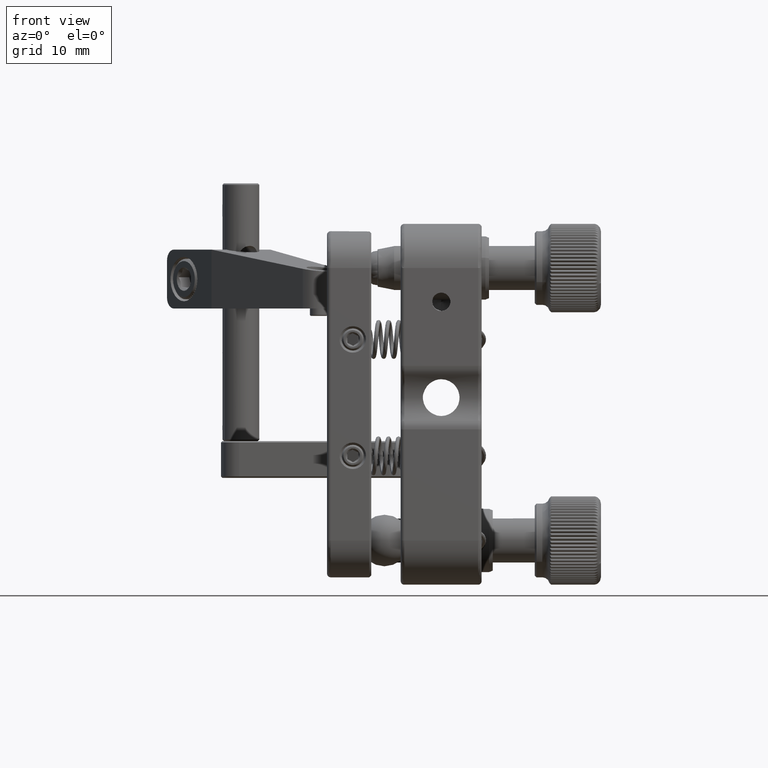
[diagram: clean part render]
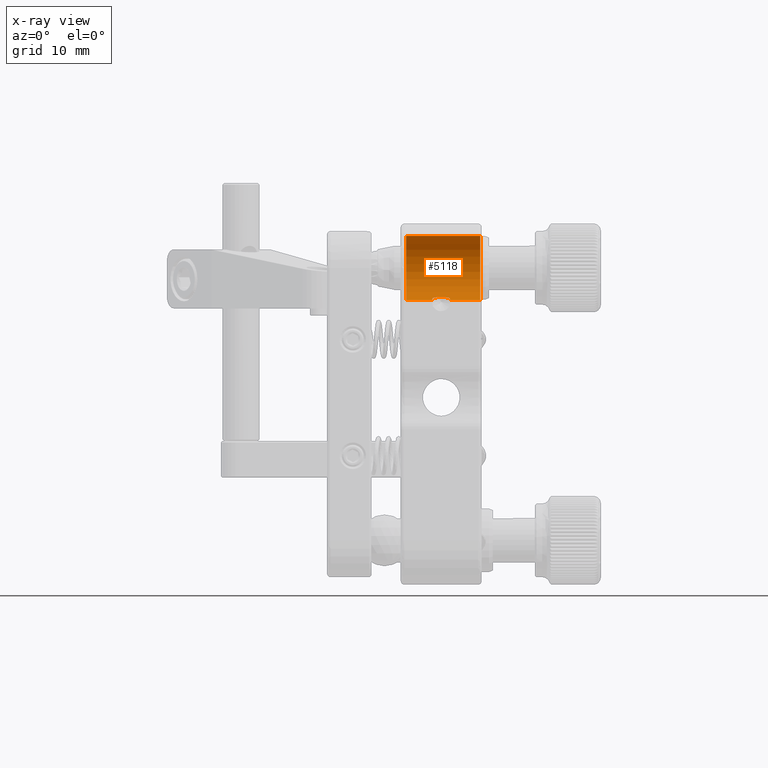
[diagram: x-ray — body ghosted, one internal face saturated and labeled with its STEP entity id]
A machine part, front view, then the same camera in x-ray: the body is ghosted and one INTERNAL B-rep face — a face not visible from any outside direction — is saturated and labeled: STEP entity #5118.
In plain terms, the highlighted cylindrical surface (edge-blend (fillet) strip) has radius 4.35 mm, axis along (1, 0, -0).
Its self-contained STEP definition (entity closure, byte-faithful):
#428 = LINE ( 'NONE', #18315, #34196 ) ;
#496 = EDGE_LOOP ( 'NONE', ( #28557, #30862, #57978, #42658, #3118, #5162, #45522, #28300, #53847 ) ) ;
#614 = CARTESIAN_POINT ( 'NONE',  ( 0.3791978567672906197, -16.69398571160523659, 14.54278472212392792 ) ) ;
#671 = FACE_OUTER_BOUND ( 'NONE', #496, .T. ) ;
#687 = VERTEX_POINT ( 'NONE', #24869 ) ;
#916 = CARTESIAN_POINT ( 'NONE',  ( 0.7538629908637947130, -16.82247720053731044, 14.48646737803480455 ) ) ;
#1350 = EDGE_CURVE ( 'NONE', #51601, #30839, #3129, .T. ) ;
#1854 = CYLINDRICAL_SURFACE ( 'NONE', #14225, 4.350000000000003197 ) ;
#2780 = DIRECTION ( 'NONE',  ( -1.000000000000000000, 6.807720020326241225E-16, -6.807720018929957422E-16 ) ) ;
#3090 = VERTEX_POINT ( 'NONE', #26234 ) ;
#3118 = ORIENTED_EDGE ( 'NONE', *, *, #40435, .T. ) ;
#3129 = B_SPLINE_CURVE_WITH_KNOTS ( 'NONE', 3,
 ( #39256, #15750, #21374, #57437, #16041, #7980 ),
 .UNSPECIFIED., .F., .F.,
 ( 4, 2, 4 ),
 ( 3.476216610979977084E-18, 0.0007635292905747010066, 0.001527058581149398544 ),
 .UNSPECIFIED. ) ;
#3516 = CARTESIAN_POINT ( 'NONE',  ( -4.750000000000000000, -18.50000000089220009, 14.15000000000000213 ) ) ;
#3880 = AXIS2_PLACEMENT_3D ( 'NONE', #48070, #57024, #6391 ) ;
#4807 = CARTESIAN_POINT ( 'NONE',  ( -0.3919002033214538105, -16.69926534790088368, 14.54032657706684972 ) ) ;
#5118 = ADVANCED_FACE ( 'NONE', ( #671 ), #1854, .F. ) ;
#5162 = ORIENTED_EDGE ( 'NONE', *, *, #9433, .T. ) ;
#6391 = DIRECTION ( 'NONE',  ( -5.981805089575192253E-16, 0.000000000000000000, -1.000000000000000000 ) ) ;
#7450 = CARTESIAN_POINT ( 'NONE',  ( 5.299999999999997158, -18.50000000178440018, 22.84999999999999432 ) ) ;
#7826 = CARTESIAN_POINT ( 'NONE',  ( -0.1982486910836069316, -16.66148595692289192, 14.55784086705030234 ) ) ;
#7955 = VERTEX_POINT ( 'NONE', #21246 ) ;
#7980 = CARTESIAN_POINT ( 'NONE',  ( -1.138162969970768268, -17.00000000036367709, 14.41680272292566123 ) ) ;
#8660 = B_SPLINE_CURVE_WITH_KNOTS ( 'NONE', 3,
 ( #38734, #58068, #49109, #57486, #17242, #56910 ),
 .UNSPECIFIED., .F., .F.,
 ( 4, 2, 4 ),
 ( 1.664305655138058166E-14, 0.0007634933856178369952, 0.001526986771219031053 ),
 .UNSPECIFIED. ) ;
#8699 = CARTESIAN_POINT ( 'NONE',  ( -0.4889628232683422837, -16.72691654608306422, 14.52786979029822056 ) ) ;
#9433 = EDGE_CURVE ( 'NONE', #49491, #10435, #29587, .T. ) ;
#10435 = VERTEX_POINT ( 'NONE', #3516 ) ;
#11467 = CARTESIAN_POINT ( 'NONE',  ( 5.299999999999997158, -18.50000000000000000, 18.50000000000001066 ) ) ;
#12151 = DIRECTION ( 'NONE',  ( -1.000000000000000000, -0.000000000000000000, -0.000000000000000000 ) ) ;
#12565 = CARTESIAN_POINT ( 'NONE',  ( 0.2750000000000000777, -18.50000000000000000, 14.14999999999999858 ) ) ;
#13207 = VERTEX_POINT ( 'NONE', #39524 ) ;
#13736 = AXIS2_PLACEMENT_3D ( 'NONE', #11467, #2780, #25164 ) ;
#13756 = VECTOR ( 'NONE', #41355, 1000.000000000000000 ) ;
#14225 = AXIS2_PLACEMENT_3D ( 'NONE', #37911, #32549, #47436 ) ;
#14707 = CARTESIAN_POINT ( 'NONE',  ( -4.749999999999994671, -18.50000000089220364, 22.84999999999999432 ) ) ;
#15750 = CARTESIAN_POINT ( 'NONE',  ( -1.224744871394733536, -18.24254307889891535, 14.14999999998459934 ) ) ;
#16041 = CARTESIAN_POINT ( 'NONE',  ( -1.178038255948022250, -17.23905210831163259, 14.32898473709757603 ) ) ;
#17052 = CARTESIAN_POINT ( 'NONE',  ( -0.2749476356948590827, -16.67394990854504400, 14.55185526267911200 ) ) ;
#17242 = CARTESIAN_POINT ( 'NONE',  ( 1.224744871395021972, -18.24259431151645217, 14.14999999998318181 ) ) ;
#17636 = CARTESIAN_POINT ( 'NONE',  ( -0.5853572528005983600, -16.75854805866082842, 14.51379308121438960 ) ) ;
#17923 = CARTESIAN_POINT ( 'NONE',  ( -0.5644809829970934834, -16.75136715580134350, 14.51695168766746669 ) ) ;
#18220 = CARTESIAN_POINT ( 'NONE',  ( -0.2894478502370403383, -16.67671351262932333, 14.55055383793496837 ) ) ;
#18315 = CARTESIAN_POINT ( 'NONE',  ( 0.2750000000000000777, -18.50000000000000000, 14.14999999999999858 ) ) ;
#18459 = CARTESIAN_POINT ( 'NONE',  ( -1.224744871391588497, -18.50000000026039970, 14.15000000000000213 ) ) ;
#18792 = CARTESIAN_POINT ( 'NONE',  ( 0.09641748843816287662, -16.64788891878822952, 14.56398875218681788 ) ) ;
#19099 = CARTESIAN_POINT ( 'NONE',  ( 0.9355436526825869903, -16.90120657512040125, 14.45447253561993861 ) ) ;
#20431 = CIRCLE ( 'NONE', #13736, 4.350000000000003197 ) ;
#21236 = CARTESIAN_POINT ( 'NONE',  ( -5.789780990655816658E-11, -16.64788891885134703, 14.56398875227067613 ) ) ;
#21246 = CARTESIAN_POINT ( 'NONE',  ( 1.224744871391588719, -18.50000000013019630, 14.14999999999999680 ) ) ;
#21374 = CARTESIAN_POINT ( 'NONE',  ( -1.220763614345893089, -17.98858237705779928, 14.17268542925944530 ) ) ;
#22987 = CARTESIAN_POINT ( 'NONE',  ( -0.5264601768346534039, -16.73877062983403974, 14.52255458529914733 ) ) ;
#23279 = CARTESIAN_POINT ( 'NONE',  ( 0.7981031238678222284, -16.84100200278183124, 14.47884387323839661 ) ) ;
#23288 = CARTESIAN_POINT ( 'NONE',  ( -0.3453449840880622457, -16.68798526498006041, 14.54535317948380957 ) ) ;
#23289 = EDGE_CURVE ( 'NONE', #687, #7955, #8660, .T. ) ;
#23574 = CARTESIAN_POINT ( 'NONE',  ( 0.4699521720620915555, -16.71918738639461210, 14.53108933380769940 ) ) ;
#24352 = VERTEX_POINT ( 'NONE', #7450 ) ;
#24449 = VECTOR ( 'NONE', #12151, 1000.000000000000000 ) ;
#24869 = CARTESIAN_POINT ( 'NONE',  ( 1.138162970477232472, -17.00000000051300120, 14.41680272285820230 ) ) ;
#25164 = DIRECTION ( 'NONE',  ( 5.981805089575192253E-16, 0.000000000000000000, -1.000000000000000000 ) ) ;
#25781 = EDGE_CURVE ( 'NONE', #687, #3090, #37098, .T. ) ;
#25992 = CARTESIAN_POINT ( 'NONE',  ( -0.2365246563878545538, -16.66731325897753635, 14.55503103953235922 ) ) ;
#26234 = CARTESIAN_POINT ( 'NONE',  ( -5.789780990655816658E-11, -16.64788891885134703, 14.56398875227067613 ) ) ;
#27452 = CARTESIAN_POINT ( 'NONE',  ( -0.5772752760923760551, -16.75574276974671761, 14.51502305404171622 ) ) ;
#28300 = ORIENTED_EDGE ( 'NONE', *, *, #1350, .T. ) ;
#28557 = ORIENTED_EDGE ( 'NONE', *, *, #25781, .F. ) ;
#28921 = CARTESIAN_POINT ( 'NONE',  ( 0.6682917924309630386, -16.78851437311825379, 14.50077020937254169 ) ) ;
#29587 = CIRCLE ( 'NONE', #3880, 4.350000000000003197 ) ;
#30839 = VERTEX_POINT ( 'NONE', #56511 ) ;
#30862 = ORIENTED_EDGE ( 'NONE', *, *, #23289, .T. ) ;
#32549 = DIRECTION ( 'NONE',  ( 1.000000000000000000, 6.807720020326241225E-16, -6.807720018929957422E-16 ) ) ;
#32897 = DIRECTION ( 'NONE',  ( 1.000000000000000000, 0.000000000000000000, 0.000000000000000000 ) ) ;
#34196 = VECTOR ( 'NONE', #32897, 1000.000000000000000 ) ;
#34918 = CARTESIAN_POINT ( 'NONE',  ( -0.09743422752385948182, -16.65047883084912428, 14.56301662184424295 ) ) ;
#35171 = LINE ( 'NONE', #12565, #13756 ) ;
#36076 = CARTESIAN_POINT ( 'NONE',  ( -0.7432057808832437384, -16.81386886942663494, 14.48964087800506917 ) ) ;
#36856 = EDGE_CURVE ( 'NONE', #7955, #13207, #35171, .T. ) ;
#37098 = B_SPLINE_CURVE_WITH_KNOTS ( 'NONE', 3,
 ( #51555, #46207, #19099, #23279, #916, #28921, #41447, #23574, #614, #55451, #18792, #50978 ),
 .UNSPECIFIED., .F., .F.,
 ( 4, 2, 2, 2, 2, 4 ),
 ( 0.000000000000000000, 0.2499999999999971134, 0.3749999999999972244, 0.4999999999999973355, 0.7499999999999986677, 1.000000000000000000 ),
 .UNSPECIFIED. ) ;
#37911 = CARTESIAN_POINT ( 'NONE',  ( -4.749999999999997335, -18.50000000000000000, 18.50000000000001066 ) ) ;
#38734 = CARTESIAN_POINT ( 'NONE',  ( 1.138162970477232472, -17.00000000051300120, 14.41680272285820230 ) ) ;
#39239 = LINE ( 'NONE', #52939, #24449 ) ;
#39256 = CARTESIAN_POINT ( 'NONE',  ( -1.224744871391588497, -18.50000000026039970, 14.15000000000000213 ) ) ;
#39415 = CARTESIAN_POINT ( 'NONE',  ( -0.04811364185262071574, -16.64788891885850219, 14.56398875229638534 ) ) ;
#39524 = CARTESIAN_POINT ( 'NONE',  ( 5.300000000000000711, -18.50000000000000000, 14.14999999999999680 ) ) ;
#40435 = EDGE_CURVE ( 'NONE', #24352, #49491, #39239, .T. ) ;
#41170 = CARTESIAN_POINT ( 'NONE',  ( -1.138162969970768268, -17.00000000036367709, 14.41680272292566123 ) ) ;
#41355 = DIRECTION ( 'NONE',  ( 1.000000000000000000, 0.000000000000000000, 0.000000000000000000 ) ) ;
#41447 = CARTESIAN_POINT ( 'NONE',  ( 0.6153564168119601829, -16.76870060315035360, 14.50934444620101971 ) ) ;
#41994 = EDGE_CURVE ( 'NONE', #3090, #30839, #47487, .T. ) ;
#42658 = ORIENTED_EDGE ( 'NONE', *, *, #55998, .F. ) ;
#44164 = CARTESIAN_POINT ( 'NONE',  ( -0.2493180514741146769, -16.66941756249833517, 14.55401644419186269 ) ) ;
#45522 = ORIENTED_EDGE ( 'NONE', *, *, #45762, .T. ) ;
#45762 = EDGE_CURVE ( 'NONE', #10435, #51601, #428, .T. ) ;
#45921 = CARTESIAN_POINT ( 'NONE',  ( -0.5453610238593223913, -16.74490979805704427, 14.51981019465952372 ) ) ;
#46207 = CARTESIAN_POINT ( 'NONE',  ( 1.033478400573360823, -16.94751651081943322, 14.43608301483878620 ) ) ;
#47436 = DIRECTION ( 'NONE',  ( -5.981805089575192253E-16, 1.000000000000000000, 0.000000000000000000 ) ) ;
#47487 = B_SPLINE_CURVE_WITH_KNOTS ( 'NONE', 3,
 ( #21236, #39415, #34918, #48624, #7826, #25992, #44164, #17052, #18220, #23288, #4807, #58457, #8699, #22987, #45921, #17923, #27452, #17636, #36076, #54287, #41170 ),
 .UNSPECIFIED., .F., .F.,
 ( 4, 2, 2, 2, 2, 2, 2, 1, 2, 2, 4 ),
 ( 0.000000000000000000, 0.1250000000000029143, 0.1875000000000042466, 0.2187500000000042744, 0.2500000000000042744, 0.3749999999999991673, 0.4374999999999953926, 0.4687499999999925060, 0.4843749999999908962, 0.4999999999999893419, 1.000000000000000000 ),
 .UNSPECIFIED. ) ;
#48070 = CARTESIAN_POINT ( 'NONE',  ( -4.749999999999997335, -18.50000000000000000, 18.50000000000001066 ) ) ;
#48624 = CARTESIAN_POINT ( 'NONE',  ( -0.1728723029649846255, -16.65824856689674149, 14.55939731405162618 ) ) ;
#49109 = CARTESIAN_POINT ( 'NONE',  ( 1.197166571266337076, -17.48454665311143330, 14.26253651943967071 ) ) ;
#49491 = VERTEX_POINT ( 'NONE', #14707 ) ;
#50978 = CARTESIAN_POINT ( 'NONE',  ( -5.789780990655816658E-11, -16.64788891885134703, 14.56398875227067613 ) ) ;
#51555 = CARTESIAN_POINT ( 'NONE',  ( 1.138162970477232472, -17.00000000051300120, 14.41680272285820230 ) ) ;
#51601 = VERTEX_POINT ( 'NONE', #18459 ) ;
#52939 = CARTESIAN_POINT ( 'NONE',  ( 0.2750000000000000777, -18.50000000178440374, 22.84999999999999787 ) ) ;
#53847 = ORIENTED_EDGE ( 'NONE', *, *, #41994, .F. ) ;
#54287 = CARTESIAN_POINT ( 'NONE',  ( -0.9263225625056464851, -16.89379405380469024, 14.45581845308528912 ) ) ;
#55451 = CARTESIAN_POINT ( 'NONE',  ( 0.1874649247586186174, -16.65710827735163235, 14.55929214488629242 ) ) ;
#55998 = EDGE_CURVE ( 'NONE', #24352, #13207, #20431, .T. ) ;
#56511 = CARTESIAN_POINT ( 'NONE',  ( -1.138162969970768268, -17.00000000036367709, 14.41680272292566123 ) ) ;
#56910 = CARTESIAN_POINT ( 'NONE',  ( 1.224744871391588719, -18.50000000013019630, 14.14999999999999680 ) ) ;
#57024 = DIRECTION ( 'NONE',  ( -1.000000000000000000, -6.807720020326241225E-16, 6.807720018929957422E-16 ) ) ;
#57437 = CARTESIAN_POINT ( 'NONE',  ( -1.197386860789750873, -17.48772370673325582, 14.26178149627823721 ) ) ;
#57486 = CARTESIAN_POINT ( 'NONE',  ( 1.220691143793545264, -17.98550602424960942, 14.17304515880900340 ) ) ;
#57978 = ORIENTED_EDGE ( 'NONE', *, *, #36856, .T. ) ;
#58068 = CARTESIAN_POINT ( 'NONE',  ( 1.178067951395894486, -17.23923013163411966, 14.32891933882156366 ) ) ;
#58457 = CARTESIAN_POINT ( 'NONE',  ( -0.4643708745643653768, -16.71957949384247044, 14.53117938563855738 ) ) ;